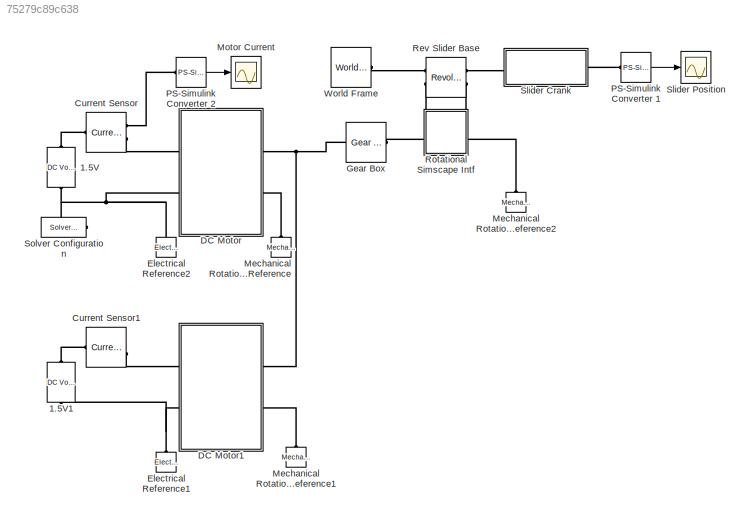
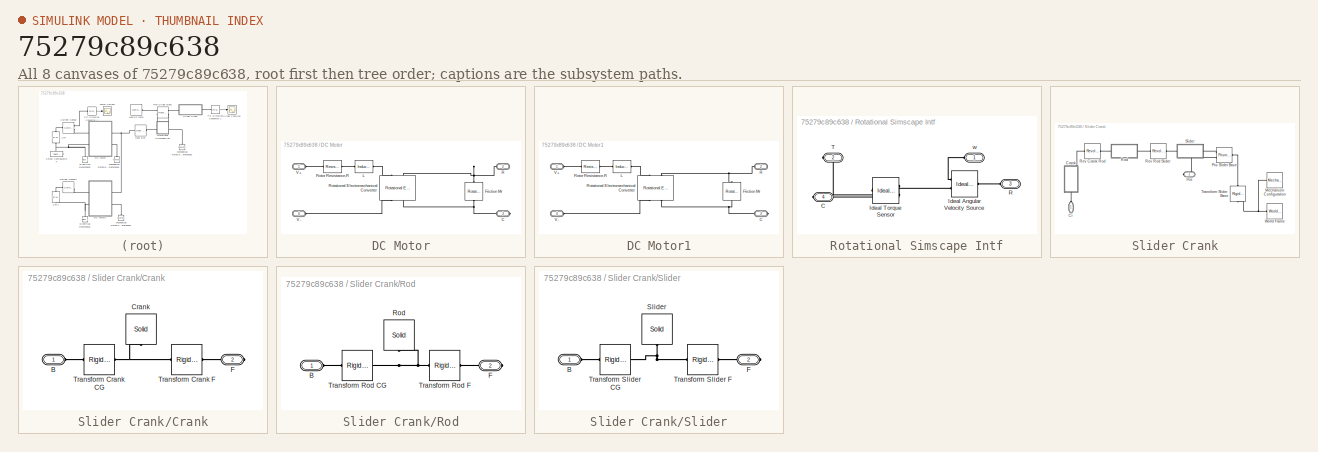
[diagram: thumbnail index - all 8 canvases of the model, root first then tree order]
MODEL slx_75279c89c638
KIND model
CONFIG AbsTol = 1e-4
CONFIG FixedStep = auto
CONFIG MaxStep = auto
CONFIG MinStep = auto
CONFIG PostLoadFcn = warning off Simulink:Engine:UsingDefaultMaxStepSize
CONFIG PreLoadFcn = crank_length = 4.5;\nslider_length = 4;\nrod_length = 13;
CONFIG RelTol = 1e-3
CONFIG SampleTimeConstraint = Unconstrained
CONFIG Solver = ode15s
CONFIG SolverMode = Auto
CONFIG SolverName = ode15s
CONFIG StartTime = 0.0
CONFIG StopTime = 10.0
BLOCK [Reference] 1.5V  REF=fl_lib/Electrical/Electrical Sources/DC Voltage Source
  Ports = [0, 0, 0, 0, 0, 1, 1]
  SourceBlock = fl_lib/Electrical/Electrical Sources/DC Voltage Source
  SourceType = DC Voltage Source
BLOCK [Reference] 1.5V1  REF=fl_lib/Electrical/Electrical Sources/DC Voltage Source
  Ports = [0, 0, 0, 0, 0, 1, 1]
  SourceBlock = fl_lib/Electrical/Electrical Sources/DC Voltage Source
  SourceType = DC Voltage Source
BLOCK [Reference] Current Sensor  REF=fl_lib/Electrical/Electrical Sensors/Current Sensor
  Ports = [0, 0, 0, 0, 0, 1, 2]
  SourceBlock = fl_lib/Electrical/Electrical Sensors/Current Sensor
  SourceType = Current Sensor
BLOCK [Reference] Current Sensor1  REF=fl_lib/Electrical/Electrical Sensors/Current Sensor
  Ports = [0, 0, 0, 0, 0, 1, 2]
  SourceBlock = fl_lib/Electrical/Electrical Sensors/Current Sensor
  SourceType = Current Sensor
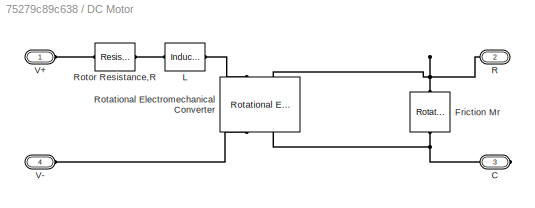
BLOCK [SubSystem] DC Motor
  Ports = [0, 0, 0, 0, 0, 2, 2]
  RequestExecContextInheritance = off
  Variant = off
BLOCK [PMIOPort] DC Motor/C
  Port = 3
  Side = Right
BLOCK [Reference] DC Motor/Friction Mr  REF=fl_lib/Mechanical/Rotational Elements/Rotational Friction
  Ports = [0, 0, 0, 0, 0, 1, 1]
  SourceBlock = fl_lib/Mechanical/Rotational Elements/Rotational Friction
  SourceType = Rotational Friction
BLOCK [Reference] DC Motor/L  REF=fl_lib/Electrical/Electrical Elements/Inductor
  Ports = [0, 0, 0, 0, 0, 1, 1]
  SourceBlock = fl_lib/Electrical/Electrical Elements/Inductor
  SourceType = Inductor
BLOCK [PMIOPort] DC Motor/R
  Port = 2
  Side = Right
BLOCK [Reference] DC Motor/Rotational Electromechanical Converter  REF=fl_lib/Electrical/Electrical Elements/Rotational
Electromechanical
Converter
  Ports = [0, 0, 0, 0, 0, 2, 2]
  SourceBlock = fl_lib/Electrical/Electrical Elements/Rotational\nElectromechanical\nConverter
  SourceType = Rotational\nElectromechanical\nConverter
BLOCK [Reference] DC Motor/Rotor Resistance,R  REF=fl_lib/Electrical/Electrical Elements/Resistor
  Ports = [0, 0, 0, 0, 0, 1, 1]
  SourceBlock = fl_lib/Electrical/Electrical Elements/Resistor
  SourceType = Resistor
  Tag = Factory Generic
BLOCK [PMIOPort] DC Motor/V+
  Port = 1
  Side = Left
BLOCK [PMIOPort] DC Motor/V-
  Port = 4
  Side = Left
BLOCK [SubSystem] DC Motor1
  Ports = [0, 0, 0, 0, 0, 2, 2]
  RequestExecContextInheritance = off
  Variant = off
BLOCK [PMIOPort] DC Motor1/C
  Port = 3
  Side = Right
BLOCK [Reference] DC Motor1/Friction Mr  REF=fl_lib/Mechanical/Rotational Elements/Rotational Friction
  Ports = [0, 0, 0, 0, 0, 1, 1]
  SourceBlock = fl_lib/Mechanical/Rotational Elements/Rotational Friction
  SourceType = Rotational Friction
BLOCK [Reference] DC Motor1/L  REF=fl_lib/Electrical/Electrical Elements/Inductor
  Ports = [0, 0, 0, 0, 0, 1, 1]
  SourceBlock = fl_lib/Electrical/Electrical Elements/Inductor
  SourceType = Inductor
BLOCK [PMIOPort] DC Motor1/R
  Port = 2
  Side = Right
BLOCK [Reference] DC Motor1/Rotational Electromechanical Converter  REF=fl_lib/Electrical/Electrical Elements/Rotational
Electromechanical
Converter
  Ports = [0, 0, 0, 0, 0, 2, 2]
  SourceBlock = fl_lib/Electrical/Electrical Elements/Rotational\nElectromechanical\nConverter
  SourceType = Rotational\nElectromechanical\nConverter
BLOCK [Reference] DC Motor1/Rotor Resistance,R  REF=fl_lib/Electrical/Electrical Elements/Resistor
  Ports = [0, 0, 0, 0, 0, 1, 1]
  SourceBlock = fl_lib/Electrical/Electrical Elements/Resistor
  SourceType = Resistor
  Tag = Factory Generic
BLOCK [PMIOPort] DC Motor1/V+
  Port = 1
  Side = Left
BLOCK [PMIOPort] DC Motor1/V-
  Port = 4
  Side = Left
BLOCK [Reference] Electrical Reference1  REF=fl_lib/Electrical/Electrical Elements/Electrical Reference
  Ports = [0, 0, 0, 0, 0, 1]
  SourceBlock = fl_lib/Electrical/Electrical Elements/Electrical Reference
  SourceType = Electrical Reference
BLOCK [Reference] Electrical Reference2  REF=fl_lib/Electrical/Electrical Elements/Electrical Reference
  Ports = [0, 0, 0, 0, 0, 1]
  SourceBlock = fl_lib/Electrical/Electrical Elements/Electrical Reference
  SourceType = Electrical Reference
BLOCK [Reference] Gear Box  REF=fl_lib/Mechanical/Mechanisms/Gear Box
  Ports = [0, 0, 0, 0, 0, 1, 1]
  SourceBlock = fl_lib/Mechanical/Mechanisms/Gear Box
  SourceType = Gear Box
BLOCK [Reference] Mechanical Rotational Reference  REF=fl_lib/Mechanical/Rotational Elements/Mechanical
Rotational Reference
  Ports = [0, 0, 0, 0, 0, 1]
  SourceBlock = fl_lib/Mechanical/Rotational Elements/Mechanical\nRotational Reference
  SourceType = Mechanical\nRotational Reference
BLOCK [Reference] Mechanical Rotational Reference1  REF=fl_lib/Mechanical/Rotational Elements/Mechanical
Rotational Reference
  Ports = [0, 0, 0, 0, 0, 1]
  SourceBlock = fl_lib/Mechanical/Rotational Elements/Mechanical\nRotational Reference
  SourceType = Mechanical\nRotational Reference
BLOCK [Reference] Mechanical Rotational Reference2  REF=fl_lib/Mechanical/Rotational Elements/Mechanical
Rotational Reference
  Ports = [0, 0, 0, 0, 0, 1]
  SourceBlock = fl_lib/Mechanical/Rotational Elements/Mechanical\nRotational Reference
  SourceType = Mechanical\nRotational Reference
BLOCK [Scope] Motor Current
  Ports = [1]
  ScopeSpecificationString = Simulink.scopes.TimeScopeBlockCfg('CurrentConfiguration', extmgr.ConfigurationSet(extmgr.Configuration('Core','General UI',true),extmgr.Configuration('Core','Source UI',true),extmgr.Configuration('Sources','WiredSimulink',true,'DataLoggingSaveFormat','StructureWithTime','DataLoggingLimitDataPoints',true,'DataLoggingDecimation','1'),extmgr.Configuration('Visuals','Time Domain',true,'SerializedDispl...<+1608ch>
BLOCK [Reference] PS-Simulink Converter 1  REF=nesl_utility/PS-Simulink
Converter
  Ports = [0, 1, 0, 0, 0, 1]
  SourceBlock = nesl_utility/PS-Simulink\nConverter
  SourceType = PS-Simulink\nConverter
BLOCK [Reference] PS-Simulink Converter 2  REF=nesl_utility/PS-Simulink
Converter
  Ports = [0, 1, 0, 0, 0, 1]
  SourceBlock = nesl_utility/PS-Simulink\nConverter
  SourceType = PS-Simulink\nConverter
BLOCK [Reference] Rev Slider Base  REF=sm_lib/Joints/Revolute Joint
  Ports = [0, 0, 0, 0, 0, 2, 2]
  SourceBlock = sm_lib/Joints/Revolute Joint
  SourceType = Revolute Joint
BLOCK [SubSystem] Rotational Simscape Intf
  Ports = [0, 0, 0, 0, 0, 2, 2]
  RequestExecContextInheritance = off
  Variant = off
BLOCK [PMIOPort] Rotational Simscape Intf/C
  Port = 4
  Side = Right
BLOCK [Reference] Rotational Simscape Intf/Ideal Angular Velocity Source  REF=fl_lib/Mechanical/Mechanical Sources/Ideal Angular
Velocity Source
  Ports = [0, 0, 0, 0, 0, 1, 2]
  SourceBlock = fl_lib/Mechanical/Mechanical Sources/Ideal Angular\nVelocity Source
  SourceType = Ideal Angular\nVelocity Source
BLOCK [Reference] Rotational Simscape Intf/Ideal Torque Sensor  REF=fl_lib/Mechanical/Mechanical Sensors/Ideal Torque Sensor
  Ports = [0, 0, 0, 0, 0, 1, 2]
  SourceBlock = fl_lib/Mechanical/Mechanical Sensors/Ideal Torque Sensor
  SourceType = Ideal Torque Sensor
BLOCK [PMIOPort] Rotational Simscape Intf/R
  Port = 3
  Side = Left
BLOCK [PMIOPort] Rotational Simscape Intf/T
  Port = 2
  Side = Right
BLOCK [PMIOPort] Rotational Simscape Intf/w
  Port = 1
  Side = Left
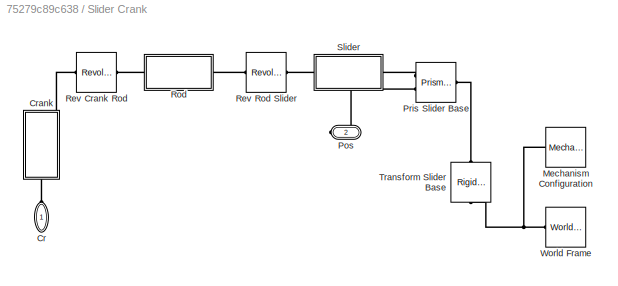
BLOCK [SubSystem] Slider Crank
  Ports = [0, 0, 0, 0, 0, 1, 1]
  RequestExecContextInheritance = off
  Variant = off
BLOCK [PMIOPort] Slider Crank/Cr
  Port = 1
  Side = Left
BLOCK [SubSystem] Slider Crank/Crank
  Ports = [0, 0, 0, 0, 0, 1, 1]
  RequestExecContextInheritance = off
  Variant = off
BLOCK [PMIOPort] Slider Crank/Crank/B
  Port = 1
  Side = Left
BLOCK [Reference] Slider Crank/Crank/Crank  REF=sm_lib/Body Elements/Solid
  Ports = [0, 0, 0, 0, 0, 0, 1]
  SourceBlock = sm_lib/Body Elements/Solid
  SourceType = Solid
BLOCK [PMIOPort] Slider Crank/Crank/F
  Port = 2
  Side = Right
BLOCK [Reference] Slider Crank/Crank/Transform Crank CG  REF=sm_lib/Frames and
Transforms/Rigid
Transform
  Ports = [0, 0, 0, 0, 0, 1, 1]
  SourceBlock = sm_lib/Frames and\nTransforms/Rigid\nTransform
  SourceType = Rigid\nTransform
BLOCK [Reference] Slider Crank/Crank/Transform Crank F  REF=sm_lib/Frames and
Transforms/Rigid
Transform
  Ports = [0, 0, 0, 0, 0, 1, 1]
  SourceBlock = sm_lib/Frames and\nTransforms/Rigid\nTransform
  SourceType = Rigid\nTransform
BLOCK [Reference] Slider Crank/Mechanism Configuration  REF=sm_lib/Utilities/Mechanism
Configuration
  Ports = [0, 0, 0, 0, 0, 0, 1]
  SourceBlock = sm_lib/Utilities/Mechanism\nConfiguration
  SourceType = Mechanism\nConfiguration
BLOCK [PMIOPort] Slider Crank/Pos
  Port = 2
  Side = Right
BLOCK [Reference] Slider Crank/Pris Slider Base  REF=sm_lib/Joints/Prismatic
Joint
  Ports = [0, 0, 0, 0, 0, 1, 2]
  SourceBlock = sm_lib/Joints/Prismatic\nJoint
  SourceType = Prismatic\nJoint
BLOCK [Reference] Slider Crank/Rev Crank Rod  REF=sm_lib/Joints/Revolute Joint
  Ports = [0, 0, 0, 0, 0, 1, 1]
  SourceBlock = sm_lib/Joints/Revolute Joint
  SourceType = Revolute Joint
BLOCK [Reference] Slider Crank/Rev Rod Slider  REF=sm_lib/Joints/Revolute Joint
  Ports = [0, 0, 0, 0, 0, 1, 1]
  SourceBlock = sm_lib/Joints/Revolute Joint
  SourceType = Revolute Joint
BLOCK [SubSystem] Slider Crank/Rod
  Ports = [0, 0, 0, 0, 0, 1, 1]
  RequestExecContextInheritance = off
  Variant = off
BLOCK [PMIOPort] Slider Crank/Rod/B
  Port = 1
  Side = Left
BLOCK [PMIOPort] Slider Crank/Rod/F
  Port = 2
  Side = Right
BLOCK [Reference] Slider Crank/Rod/Rod  REF=sm_lib/Body Elements/Solid
  Ports = [0, 0, 0, 0, 0, 0, 1]
  SourceBlock = sm_lib/Body Elements/Solid
  SourceType = Solid
BLOCK [Reference] Slider Crank/Rod/Transform Rod CG  REF=sm_lib/Frames and
Transforms/Rigid
Transform
  Ports = [0, 0, 0, 0, 0, 1, 1]
  SourceBlock = sm_lib/Frames and\nTransforms/Rigid\nTransform
  SourceType = Rigid\nTransform
BLOCK [Reference] Slider Crank/Rod/Transform Rod F  REF=sm_lib/Frames and
Transforms/Rigid
Transform
  Ports = [0, 0, 0, 0, 0, 1, 1]
  SourceBlock = sm_lib/Frames and\nTransforms/Rigid\nTransform
  SourceType = Rigid\nTransform
BLOCK [SubSystem] Slider Crank/Slider
  Ports = [0, 0, 0, 0, 0, 1, 1]
  RequestExecContextInheritance = off
  Variant = off
BLOCK [PMIOPort] Slider Crank/Slider/B
  Port = 1
  Side = Left
BLOCK [PMIOPort] Slider Crank/Slider/F
  Port = 2
  Side = Right
BLOCK [Reference] Slider Crank/Slider/Slider  REF=sm_lib/Body Elements/Solid
  Ports = [0, 0, 0, 0, 0, 0, 1]
  SourceBlock = sm_lib/Body Elements/Solid
  SourceType = Solid
BLOCK [Reference] Slider Crank/Slider/Transform Slider CG  REF=sm_lib/Frames and
Transforms/Rigid
Transform
  Ports = [0, 0, 0, 0, 0, 1, 1]
  SourceBlock = sm_lib/Frames and\nTransforms/Rigid\nTransform
  SourceType = Rigid\nTransform
BLOCK [Reference] Slider Crank/Slider/Transform Slider F  REF=sm_lib/Frames and
Transforms/Rigid
Transform
  Ports = [0, 0, 0, 0, 0, 1, 1]
  SourceBlock = sm_lib/Frames and\nTransforms/Rigid\nTransform
  SourceType = Rigid\nTransform
BLOCK [Reference] Slider Crank/Transform Slider Base  REF=sm_lib/Frames and
Transforms/Rigid
Transform
  Ports = [0, 0, 0, 0, 0, 1, 1]
  SourceBlock = sm_lib/Frames and\nTransforms/Rigid\nTransform
  SourceType = Rigid\nTransform
BLOCK [Reference] Slider Crank/World Frame  REF=sm_lib/Frames and
Transforms/World Frame
  Ports = [0, 0, 0, 0, 0, 0, 1]
  SourceBlock = sm_lib/Frames and\nTransforms/World Frame
  SourceType = World Frame
BLOCK [Scope] Slider Position
  Ports = [1]
  ScopeSpecificationString = Simulink.scopes.TimeScopeBlockCfg('CurrentConfiguration', extmgr.ConfigurationSet(extmgr.Configuration('Core','General UI',true),extmgr.Configuration('Core','Source UI',true),extmgr.Configuration('Sources','WiredSimulink',true,'DataLoggingVariableName','ScopeData1','DataLoggingSaveFormat','StructureWithTime','DataLoggingLimitDataPoints',true,'DataLoggingDecimation','1'),extmgr.Configuration('Visua...<+1645ch>
BLOCK [Reference] Solver Configuration  REF=nesl_utility/Solver
Configuration
  Ports = [0, 0, 0, 0, 0, 0, 1]
  SourceBlock = nesl_utility/Solver\nConfiguration
  SourceType = Solver\nConfiguration
BLOCK [Reference] World Frame  REF=sm_lib/Frames and
Transforms/World Frame
  Ports = [0, 0, 0, 0, 0, 0, 1]
  SourceBlock = sm_lib/Frames and\nTransforms/World Frame
  SourceType = World Frame
LINE PS-Simulink Converter 1:1 -> Slider Position:1
LINE PS-Simulink Converter 2:1 -> Motor Current:1
PLINE 1.5V1:LConn1 -- Current Sensor1:LConn1
PNET net1: 1.5V1:RConn1 -- DC Motor1:LConn2 -- Electrical Reference1:LConn1
PLINE 1.5V:LConn1 -- Current Sensor:LConn1
PNET net2: 1.5V:RConn1 -- DC Motor:LConn2 -- Electrical Reference2:LConn1 -- Solver Configuration:RConn1
PLINE Current Sensor1:RConn2 -- DC Motor1:LConn1
PLINE Current Sensor:RConn1 -- PS-Simulink Converter 2:LConn1
PLINE Current Sensor:RConn2 -- DC Motor:LConn1
PNET net3: DC Motor/C:RConn1 -- DC Motor/Friction Mr:RConn1 -- DC Motor/Rotational Electromechanical Converter:RConn2
PNET net4: DC Motor/Friction Mr:LConn1 -- DC Motor/R:RConn1 -- DC Motor/Rotational Electromechanical Converter:LConn2
PLINE DC Motor/L:LConn1 -- DC Motor/Rotor Resistance,R:RConn1
PLINE DC Motor/L:RConn1 -- DC Motor/Rotational Electromechanical Converter:LConn1
PLINE DC Motor/Rotational Electromechanical Converter:RConn1 -- DC Motor/V-:RConn1
PLINE DC Motor/Rotor Resistance,R:LConn1 -- DC Motor/V+:RConn1
PNET net5: DC Motor1/C:RConn1 -- DC Motor1/Friction Mr:RConn1 -- DC Motor1/Rotational Electromechanical Converter:RConn2
PNET net6: DC Motor1/Friction Mr:LConn1 -- DC Motor1/R:RConn1 -- DC Motor1/Rotational Electromechanical Converter:LConn2
PLINE DC Motor1/L:LConn1 -- DC Motor1/Rotor Resistance,R:RConn1
PLINE DC Motor1/L:RConn1 -- DC Motor1/Rotational Electromechanical Converter:LConn1
PLINE DC Motor1/Rotational Electromechanical Converter:RConn1 -- DC Motor1/V-:RConn1
PLINE DC Motor1/Rotor Resistance,R:LConn1 -- DC Motor1/V+:RConn1
PNET net7: DC Motor1:RConn1 -- DC Motor:RConn1 -- Gear Box:LConn1
PLINE DC Motor1:RConn2 -- Mechanical Rotational Reference1:LConn1
PLINE DC Motor:RConn2 -- Mechanical Rotational Reference:LConn1
PLINE Gear Box:RConn1 -- Rotational Simscape Intf:RConn2
PLINE Mechanical Rotational Reference2:LConn1 -- Rotational Simscape Intf:LConn2
PLINE PS-Simulink Converter 1:LConn1 -- Slider Crank:RConn1
PLINE Rev Slider Base:LConn1 -- World Frame:RConn1
PLINE Rev Slider Base:LConn2 -- Rotational Simscape Intf:RConn1
PLINE Rev Slider Base:RConn1 -- Slider Crank:LConn1
PLINE Rev Slider Base:RConn2 -- Rotational Simscape Intf:LConn1
PLINE Rotational Simscape Intf/C:RConn1 -- Rotational Simscape Intf/Ideal Torque Sensor:RConn1
PLINE Rotational Simscape Intf/Ideal Angular Velocity Source:LConn1 -- Rotational Simscape Intf/R:RConn1
PLINE Rotational Simscape Intf/Ideal Angular Velocity Source:RConn1 -- Rotational Simscape Intf/w:RConn1
PLINE Rotational Simscape Intf/Ideal Angular Velocity Source:RConn2 -- Rotational Simscape Intf/Ideal Torque Sensor:LConn1
PLINE Rotational Simscape Intf/Ideal Torque Sensor:RConn2 -- Rotational Simscape Intf/T:RConn1
PLINE Slider Crank/Cr:RConn1 -- Slider Crank/Crank:LConn1
PLINE Slider Crank/Crank/B:RConn1 -- Slider Crank/Crank/Transform Crank CG:LConn1
PNET net8: Slider Crank/Crank/Crank:RConn1 -- Slider Crank/Crank/Transform Crank CG:RConn1 -- Slider Crank/Crank/Transform Crank F:LConn1
PLINE Slider Crank/Crank/F:RConn1 -- Slider Crank/Crank/Transform Crank F:RConn1
PLINE Slider Crank/Crank:RConn1 -- Slider Crank/Rev Crank Rod:LConn1
PNET net9: Slider Crank/Mechanism Configuration:RConn1 -- Slider Crank/Transform Slider Base:LConn1 -- Slider Crank/World Frame:RConn1
PLINE Slider Crank/Pos:RConn1 -- Slider Crank/Pris Slider Base:RConn2
PLINE Slider Crank/Pris Slider Base:LConn1 -- Slider Crank/Transform Slider Base:RConn1
PLINE Slider Crank/Pris Slider Base:RConn1 -- Slider Crank/Slider:RConn1
PLINE Slider Crank/Rev Crank Rod:RConn1 -- Slider Crank/Rod:LConn1
PLINE Slider Crank/Rev Rod Slider:LConn1 -- Slider Crank/Rod:RConn1
PLINE Slider Crank/Rev Rod Slider:RConn1 -- Slider Crank/Slider:LConn1
PLINE Slider Crank/Rod/B:RConn1 -- Slider Crank/Rod/Transform Rod CG:LConn1
PLINE Slider Crank/Rod/F:RConn1 -- Slider Crank/Rod/Transform Rod F:RConn1
PNET net10: Slider Crank/Rod/Rod:RConn1 -- Slider Crank/Rod/Transform Rod CG:RConn1 -- Slider Crank/Rod/Transform Rod F:LConn1
PLINE Slider Crank/Slider/B:RConn1 -- Slider Crank/Slider/Transform Slider CG:LConn1
PLINE Slider Crank/Slider/F:RConn1 -- Slider Crank/Slider/Transform Slider F:RConn1
PNET net11: Slider Crank/Slider/Slider:RConn1 -- Slider Crank/Slider/Transform Slider CG:RConn1 -- Slider Crank/Slider/Transform Slider F:LConn1
note: PNET lines group multi-terminal physical nets as a canonical sorted terminal list (undirected conserving connections); 2-terminal nets keep the pairwise PLINE form
